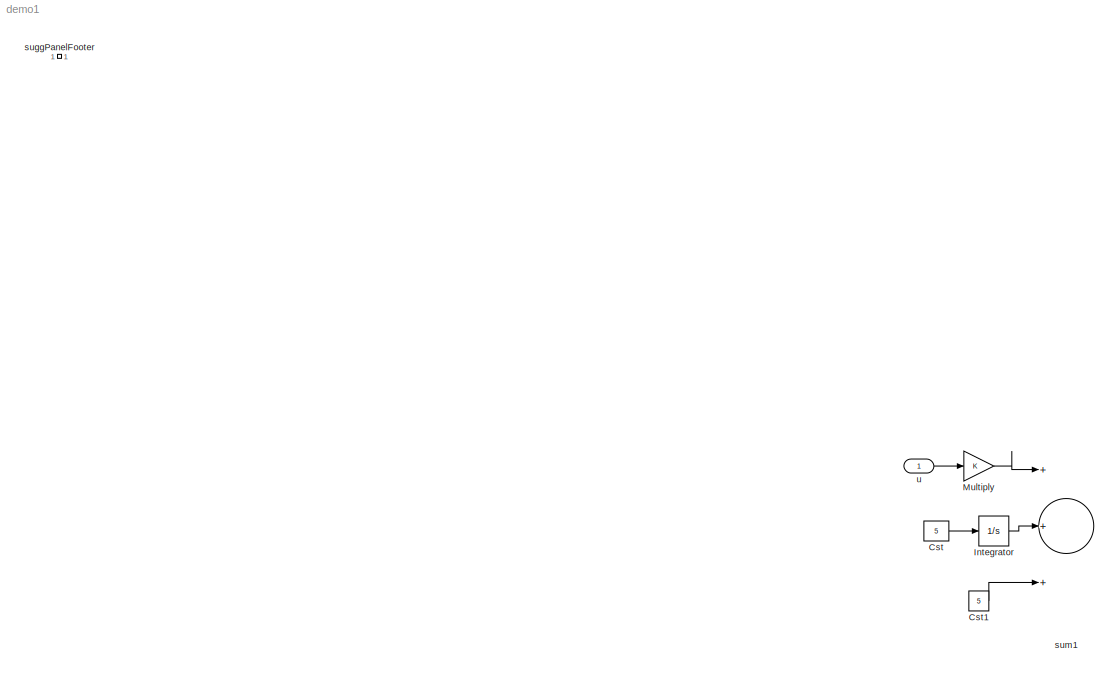
MODEL demo1
KIND model
BLOCK [Constant] Cst
  SID = 18
  Value = 5
BLOCK [Constant] Cst1
  SID = 19
  Value = 5
BLOCK [Integrator] Integrator
  Ports = [1, 1]
  SID = 20
BLOCK [Gain] Multiply
  OutDataTypeStr = Inherit: Inherit via internal rule
  ParamDataTypeStr = Inherit: Inherit via internal rule
  SID = 21
  SaturateOnIntegerOverflow = off
BLOCK [SubSystem] suggPanelFooter
  OpenFcn = % callback function code for \"Ignore Suggestions\" button \n\nstate = getSharedVar('simvma_blockInsertionState'); \n\n% delete all suggested blocks \nfor i = 1 : length(state.suggs)\n   sugg = state.suggs(i); \n   try\n       delete_block(sugg.blockPath); \n   catch ME\n   end\nend\n\n\n% delete all percentages \nfor i = 1 : length(state.percentTexts)\n    percentText = state.percentTexts(i);\n  ...<+1207ch>
  Ports = []
  RequestExecContextInheritance = off
  SID = 22
BLOCK [Sum] sum1
  Inputs = +++
  Ports = [3, 1]
  SID = 23
BLOCK [Inport] u
  IconDisplay = Port number
  SID = 17
LINE Cst1:1 -> sum1:3
LINE Cst:1 -> Integrator:1
LINE Integrator:1 -> sum1:2
LINE Multiply:1 -> sum1:1
LINE u:1 -> Multiply:1
